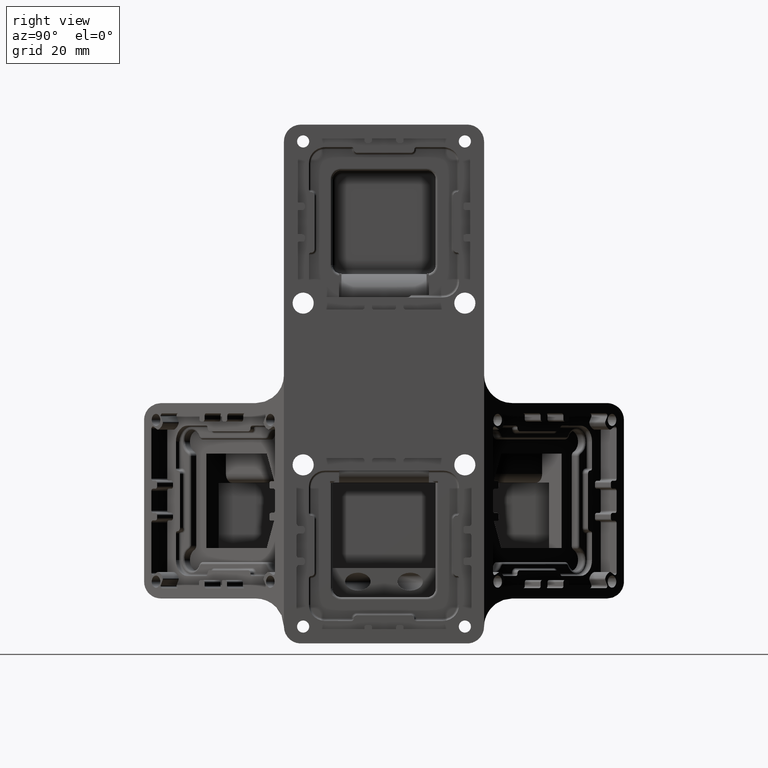
[diagram: clean part render]
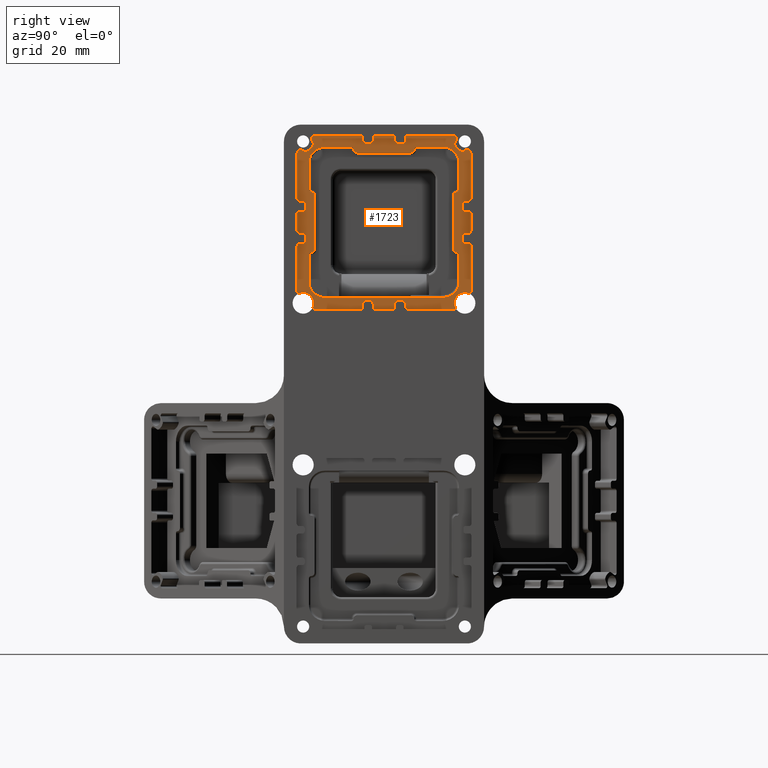
[diagram: same view with one face highlighted and labeled with its STEP entity id]
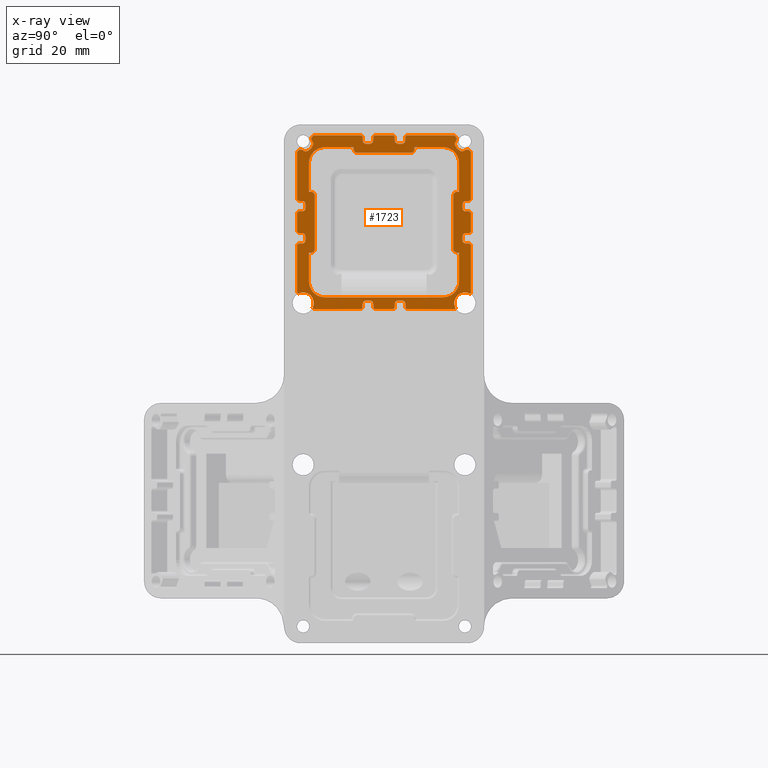
[diagram: x-ray of the same camera — body ghosted, the highlighted face saturated]
A machine part, right view. The second image highlights one B-rep face of the part: STEP entity #1723.
The next image is the same camera in x-ray: the body ghosted, the highlighted face saturated — about 0% of this face is hidden behind the body in this view.
In plain terms, the highlighted planar face has unit normal (1, 0, 0).
Its self-contained STEP definition (entity closure, byte-faithful):
#531=FACE_BOUND('',#3937,.F.);
#815=PLANE('',#25251);
#1723=ADVANCED_FACE('',(#531,#2819),#815,.T.);
#2819=FACE_OUTER_BOUND('',#3938,.F.);
#3937=EDGE_LOOP('',(#8044,#8045,#8046,#8047,#8048,#8049,#8050,#8051,#8052,
#8053,#8054,#8055,#8056,#8057,#8058,#8059,#8060,#8061,#8062,#8063,#8064,
#8065,#8066,#8067,#8068,#8069,#8070,#8071,#8072,#8073,#8074,#8075,#8076,
#8077,#8078,#8079,#8080,#8081,#8082,#8083));
#3938=EDGE_LOOP('',(#8084,#8085,#8086,#8087,#8088,#8089,#8090,#8091,#8092,
#8093,#8094,#8095,#8096,#8097,#8098,#8099,#8100,#8101,#8102,#8103,#8104,
#8105,#8106,#8107,#8108,#8109,#8110,#8111,#8112,#8113,#8114,#8115,#8116,
#8117,#8118,#8119,#8120,#8121,#8122,#8123,#8124,#8125,#8126,#8127,#8128,
#8129,#8130,#8131,#8132,#8133,#8134,#8135,#8136,#8137,#8138,#8139,#8140,
#8141,#8142,#8143,#8144,#8145,#8146,#8147,#8148,#8149,#8150,#8151,#8152,
#8153,#8154,#8155,#8156,#8157,#8158,#8159,#8160,#8161,#8162,#8163,#8164,
#8165,#8166,#8167,#8168,#8169,#8170,#8171,#8172,#8173,#8174,#8175,#8176,
#8177));
#8044=ORIENTED_EDGE('',*,*,#16594,.F.);
#8045=ORIENTED_EDGE('',*,*,#16573,.F.);
#8046=ORIENTED_EDGE('',*,*,#16574,.F.);
#8047=ORIENTED_EDGE('',*,*,#16575,.F.);
#8048=ORIENTED_EDGE('',*,*,#16569,.F.);
#8049=ORIENTED_EDGE('',*,*,#16567,.F.);
#8050=ORIENTED_EDGE('',*,*,#16568,.F.);
#8051=ORIENTED_EDGE('',*,*,#16576,.T.);
#8052=ORIENTED_EDGE('',*,*,#16577,.F.);
#8053=ORIENTED_EDGE('',*,*,#16578,.T.);
#8054=ORIENTED_EDGE('',*,*,#16579,.F.);
#8055=ORIENTED_EDGE('',*,*,#16572,.F.);
#8056=ORIENTED_EDGE('',*,*,#16570,.F.);
#8057=ORIENTED_EDGE('',*,*,#16571,.F.);
#8058=ORIENTED_EDGE('',*,*,#16580,.F.);
#8059=ORIENTED_EDGE('',*,*,#16581,.F.);
#8060=ORIENTED_EDGE('',*,*,#16557,.F.);
#8061=ORIENTED_EDGE('',*,*,#16555,.F.);
#8062=ORIENTED_EDGE('',*,*,#16556,.F.);
#8063=ORIENTED_EDGE('',*,*,#16582,.T.);
#8064=ORIENTED_EDGE('',*,*,#16583,.F.);
#8065=ORIENTED_EDGE('',*,*,#16584,.T.);
#8066=ORIENTED_EDGE('',*,*,#16585,.F.);
#8067=ORIENTED_EDGE('',*,*,#16560,.F.);
#8068=ORIENTED_EDGE('',*,*,#16558,.F.);
#8069=ORIENTED_EDGE('',*,*,#16559,.F.);
#8070=ORIENTED_EDGE('',*,*,#16586,.F.);
#8071=ORIENTED_EDGE('',*,*,#16587,.F.);
#8072=ORIENTED_EDGE('',*,*,#16563,.F.);
#8073=ORIENTED_EDGE('',*,*,#16561,.F.);
#8074=ORIENTED_EDGE('',*,*,#16562,.F.);
#8075=ORIENTED_EDGE('',*,*,#16588,.T.);
#8076=ORIENTED_EDGE('',*,*,#16589,.F.);
#8077=ORIENTED_EDGE('',*,*,#16590,.T.);
#8078=ORIENTED_EDGE('',*,*,#16591,.F.);
#8079=ORIENTED_EDGE('',*,*,#16566,.F.);
#8080=ORIENTED_EDGE('',*,*,#16564,.F.);
#8081=ORIENTED_EDGE('',*,*,#16565,.F.);
#8082=ORIENTED_EDGE('',*,*,#16592,.F.);
#8083=ORIENTED_EDGE('',*,*,#16593,.F.);
#8084=ORIENTED_EDGE('',*,*,#14799,.F.);
#8085=ORIENTED_EDGE('',*,*,#16841,.F.);
#8086=ORIENTED_EDGE('',*,*,#16842,.F.);
#8087=ORIENTED_EDGE('',*,*,#16554,.T.);
#8088=ORIENTED_EDGE('',*,*,#16553,.F.);
#8089=ORIENTED_EDGE('',*,*,#16552,.T.);
#8090=ORIENTED_EDGE('',*,*,#16551,.F.);
#8091=ORIENTED_EDGE('',*,*,#16550,.F.);
#8092=ORIENTED_EDGE('',*,*,#16549,.F.);
#8093=ORIENTED_EDGE('',*,*,#16548,.F.);
#8094=ORIENTED_EDGE('',*,*,#16547,.F.);
#8095=ORIENTED_EDGE('',*,*,#16546,.T.);
#8096=ORIENTED_EDGE('',*,*,#16545,.F.);
#8097=ORIENTED_EDGE('',*,*,#16544,.T.);
#8098=ORIENTED_EDGE('',*,*,#16543,.F.);
#8099=ORIENTED_EDGE('',*,*,#16542,.F.);
#8100=ORIENTED_EDGE('',*,*,#16541,.F.);
#8101=ORIENTED_EDGE('',*,*,#16540,.F.);
#8102=ORIENTED_EDGE('',*,*,#16539,.F.);
#8103=ORIENTED_EDGE('',*,*,#16538,.T.);
#8104=ORIENTED_EDGE('',*,*,#16537,.F.);
#8105=ORIENTED_EDGE('',*,*,#16536,.T.);
#8106=ORIENTED_EDGE('',*,*,#16839,.F.);
#8107=ORIENTED_EDGE('',*,*,#16838,.F.);
#8108=ORIENTED_EDGE('',*,*,#14802,.F.);
#8109=ORIENTED_EDGE('',*,*,#16837,.F.);
#8110=ORIENTED_EDGE('',*,*,#16535,.T.);
#8111=ORIENTED_EDGE('',*,*,#16534,.F.);
#8112=ORIENTED_EDGE('',*,*,#16533,.T.);
#8113=ORIENTED_EDGE('',*,*,#16532,.F.);
#8114=ORIENTED_EDGE('',*,*,#16531,.F.);
#8115=ORIENTED_EDGE('',*,*,#16530,.F.);
#8116=ORIENTED_EDGE('',*,*,#16529,.F.);
#8117=ORIENTED_EDGE('',*,*,#16528,.F.);
#8118=ORIENTED_EDGE('',*,*,#16527,.T.);
#8119=ORIENTED_EDGE('',*,*,#16526,.F.);
#8120=ORIENTED_EDGE('',*,*,#16525,.T.);
#8121=ORIENTED_EDGE('',*,*,#16524,.F.);
#8122=ORIENTED_EDGE('',*,*,#16523,.F.);
#8123=ORIENTED_EDGE('',*,*,#16522,.F.);
#8124=ORIENTED_EDGE('',*,*,#16521,.F.);
#8125=ORIENTED_EDGE('',*,*,#16520,.F.);
#8126=ORIENTED_EDGE('',*,*,#16519,.T.);
#8127=ORIENTED_EDGE('',*,*,#16518,.F.);
#8128=ORIENTED_EDGE('',*,*,#16516,.T.);
#8129=ORIENTED_EDGE('',*,*,#16595,.F.);
#8130=ORIENTED_EDGE('',*,*,#16596,.F.);
#8131=ORIENTED_EDGE('',*,*,#16597,.F.);
#8132=ORIENTED_EDGE('',*,*,#16598,.F.);
#8133=ORIENTED_EDGE('',*,*,#16599,.F.);
#8134=ORIENTED_EDGE('',*,*,#16514,.T.);
#8135=ORIENTED_EDGE('',*,*,#16513,.F.);
#8136=ORIENTED_EDGE('',*,*,#16512,.T.);
#8137=ORIENTED_EDGE('',*,*,#16511,.F.);
#8138=ORIENTED_EDGE('',*,*,#16510,.F.);
#8139=ORIENTED_EDGE('',*,*,#16509,.F.);
#8140=ORIENTED_EDGE('',*,*,#16508,.F.);
#8141=ORIENTED_EDGE('',*,*,#16507,.F.);
#8142=ORIENTED_EDGE('',*,*,#16506,.T.);
#8143=ORIENTED_EDGE('',*,*,#16505,.F.);
#8144=ORIENTED_EDGE('',*,*,#16504,.T.);
#8145=ORIENTED_EDGE('',*,*,#16503,.F.);
#8146=ORIENTED_EDGE('',*,*,#16502,.F.);
#8147=ORIENTED_EDGE('',*,*,#16501,.F.);
#8148=ORIENTED_EDGE('',*,*,#16500,.F.);
#8149=ORIENTED_EDGE('',*,*,#16499,.F.);
#8150=ORIENTED_EDGE('',*,*,#16498,.T.);
#8151=ORIENTED_EDGE('',*,*,#16497,.F.);
#8152=ORIENTED_EDGE('',*,*,#16495,.T.);
#8153=ORIENTED_EDGE('',*,*,#16600,.F.);
#8154=ORIENTED_EDGE('',*,*,#16601,.F.);
#8155=ORIENTED_EDGE('',*,*,#16602,.F.);
#8156=ORIENTED_EDGE('',*,*,#16603,.F.);
#8157=ORIENTED_EDGE('',*,*,#16604,.F.);
#8158=ORIENTED_EDGE('',*,*,#16493,.T.);
#8159=ORIENTED_EDGE('',*,*,#16492,.F.);
#8160=ORIENTED_EDGE('',*,*,#16491,.T.);
#8161=ORIENTED_EDGE('',*,*,#16490,.F.);
#8162=ORIENTED_EDGE('',*,*,#16489,.F.);
#8163=ORIENTED_EDGE('',*,*,#16488,.F.);
#8164=ORIENTED_EDGE('',*,*,#16487,.F.);
#8165=ORIENTED_EDGE('',*,*,#16486,.F.);
#8166=ORIENTED_EDGE('',*,*,#16485,.T.);
#8167=ORIENTED_EDGE('',*,*,#16484,.F.);
#8168=ORIENTED_EDGE('',*,*,#16483,.T.);
#8169=ORIENTED_EDGE('',*,*,#16482,.F.);
#8170=ORIENTED_EDGE('',*,*,#16481,.F.);
#8171=ORIENTED_EDGE('',*,*,#16480,.F.);
#8172=ORIENTED_EDGE('',*,*,#16479,.F.);
#8173=ORIENTED_EDGE('',*,*,#16478,.F.);
#8174=ORIENTED_EDGE('',*,*,#16477,.T.);
#8175=ORIENTED_EDGE('',*,*,#16476,.F.);
#8176=ORIENTED_EDGE('',*,*,#16475,.T.);
#8177=ORIENTED_EDGE('',*,*,#16840,.F.);
#13396=CIRCLE('',#23349,2.35);
#13397=CIRCLE('',#23350,2.35);
#14090=CIRCLE('',#24043,0.800000000000011);
#14091=CIRCLE('',#24044,0.5);
#14092=CIRCLE('',#24045,0.8);
#14093=CIRCLE('',#24046,0.800000000000001);
#14094=CIRCLE('',#24047,0.5);
#14095=CIRCLE('',#24048,0.5);
#14096=CIRCLE('',#24049,0.8);
#14097=CIRCLE('',#24050,0.800000000000001);
#14098=CIRCLE('',#24051,0.5);
#14099=CIRCLE('',#24052,0.800000000000012);
#14100=CIRCLE('',#24053,0.800000000000011);
#14101=CIRCLE('',#24054,0.5);
#14102=CIRCLE('',#24055,0.799999999999998);
#14103=CIRCLE('',#24056,0.800000000000001);
#14104=CIRCLE('',#24057,0.500000000000001);
#14105=CIRCLE('',#24058,0.499999999999999);
#14106=CIRCLE('',#24059,0.8);
#14107=CIRCLE('',#24060,0.800000000000001);
#14108=CIRCLE('',#24061,0.5);
#14109=CIRCLE('',#24062,0.800000000000007);
#14110=CIRCLE('',#24063,0.800000000000011);
#14111=CIRCLE('',#24064,0.5);
#14112=CIRCLE('',#24065,0.8);
#14113=CIRCLE('',#24066,0.800000000000001);
#14114=CIRCLE('',#24067,0.500000000000001);
#14115=CIRCLE('',#24068,0.5);
#14116=CIRCLE('',#24069,0.8);
#14117=CIRCLE('',#24070,0.800000000000001);
#14118=CIRCLE('',#24071,0.5);
#14119=CIRCLE('',#24072,0.8);
#14120=CIRCLE('',#24073,0.800000000000011);
#14121=CIRCLE('',#24074,0.5);
#14122=CIRCLE('',#24075,0.799999999999998);
#14123=CIRCLE('',#24076,0.800000000000001);
#14124=CIRCLE('',#24077,0.500000000000001);
#14125=CIRCLE('',#24078,0.499999999999999);
#14126=CIRCLE('',#24079,0.8);
#14127=CIRCLE('',#24080,0.800000000000001);
#14128=CIRCLE('',#24081,0.5);
#14129=CIRCLE('',#24082,0.800000000000007);
#14130=CIRCLE('',#24083,3.54999999999995);
#14131=CIRCLE('',#24084,0.750000000000001);
#14132=CIRCLE('',#24085,0.75);
#14133=CIRCLE('',#24086,3.54999999999995);
#14134=CIRCLE('',#24087,0.749999999999887);
#14135=CIRCLE('',#24088,0.750000000000007);
#14136=CIRCLE('',#24089,3.54999999999995);
#14137=CIRCLE('',#24090,0.750000000000001);
#14138=CIRCLE('',#24091,0.75);
#14139=CIRCLE('',#24092,3.54999999999995);
#14140=CIRCLE('',#24093,0.299999999999999);
#14141=CIRCLE('',#24094,2.35);
#14142=CIRCLE('',#24095,0.300000000000002);
#14143=CIRCLE('',#24096,0.299999999999998);
#14144=CIRCLE('',#24097,2.34999999999999);
#14145=CIRCLE('',#24098,0.3);
#14226=CIRCLE('',#24179,2.35);
#14227=CIRCLE('',#24180,2.35);
#14228=CIRCLE('',#24181,2.35);
#14229=CIRCLE('',#24182,2.35);
#14230=CIRCLE('',#24183,2.35);
#14231=CIRCLE('',#24184,2.35);
#14799=EDGE_CURVE('',#23050,#23049,#13396,.T.);
#14802=EDGE_CURVE('',#23046,#23045,#13397,.T.);
#16475=EDGE_CURVE('',#21762,#23269,#14090,.T.);
#16476=EDGE_CURVE('',#21762,#21761,#18785,.T.);
#16477=EDGE_CURVE('',#21760,#21761,#14091,.T.);
#16478=EDGE_CURVE('',#21760,#21759,#18786,.T.);
#16479=EDGE_CURVE('',#21759,#21758,#14092,.T.);
#16480=EDGE_CURVE('',#21758,#21757,#18787,.T.);
#16481=EDGE_CURVE('',#21757,#21756,#14093,.T.);
#16482=EDGE_CURVE('',#21756,#21755,#18788,.T.);
#16483=EDGE_CURVE('',#21754,#21755,#14094,.T.);
#16484=EDGE_CURVE('',#21754,#21753,#18789,.T.);
#16485=EDGE_CURVE('',#21752,#21753,#14095,.T.);
#16486=EDGE_CURVE('',#21752,#21751,#18790,.T.);
#16487=EDGE_CURVE('',#21751,#21750,#14096,.T.);
#16488=EDGE_CURVE('',#21750,#21749,#18791,.T.);
#16489=EDGE_CURVE('',#21749,#21748,#14097,.T.);
#16490=EDGE_CURVE('',#21748,#21747,#18792,.T.);
#16491=EDGE_CURVE('',#21746,#21747,#14098,.T.);
#16492=EDGE_CURVE('',#21746,#21745,#18793,.T.);
#16493=EDGE_CURVE('',#21744,#21745,#14099,.T.);
#16495=EDGE_CURVE('',#21742,#21741,#14100,.T.);
#16497=EDGE_CURVE('',#21742,#21739,#18796,.T.);
#16498=EDGE_CURVE('',#21738,#21739,#14101,.T.);
#16499=EDGE_CURVE('',#21738,#21737,#18797,.T.);
#16500=EDGE_CURVE('',#21737,#21736,#14102,.T.);
#16501=EDGE_CURVE('',#21736,#21735,#18798,.T.);
#16502=EDGE_CURVE('',#21735,#21734,#14103,.T.);
#16503=EDGE_CURVE('',#21734,#21733,#18799,.T.);
#16504=EDGE_CURVE('',#21732,#21733,#14104,.T.);
#16505=EDGE_CURVE('',#21732,#21731,#18800,.T.);
#16506=EDGE_CURVE('',#21730,#21731,#14105,.T.);
#16507=EDGE_CURVE('',#21730,#21729,#18801,.T.);
#16508=EDGE_CURVE('',#21729,#21728,#14106,.T.);
#16509=EDGE_CURVE('',#21728,#21727,#18802,.T.);
#16510=EDGE_CURVE('',#21727,#21726,#14107,.T.);
#16511=EDGE_CURVE('',#21726,#21725,#18803,.T.);
#16512=EDGE_CURVE('',#21724,#21725,#14108,.T.);
#16513=EDGE_CURVE('',#21724,#21723,#18804,.T.);
#16514=EDGE_CURVE('',#21722,#21723,#14109,.T.);
#16516=EDGE_CURVE('',#21720,#21719,#14110,.T.);
#16518=EDGE_CURVE('',#21720,#21717,#18807,.T.);
#16519=EDGE_CURVE('',#21716,#21717,#14111,.T.);
#16520=EDGE_CURVE('',#21716,#21715,#18808,.T.);
#16521=EDGE_CURVE('',#21715,#21714,#14112,.T.);
#16522=EDGE_CURVE('',#21714,#21713,#18809,.T.);
#16523=EDGE_CURVE('',#21713,#21712,#14113,.T.);
#16524=EDGE_CURVE('',#21712,#21711,#18810,.T.);
#16525=EDGE_CURVE('',#21710,#21711,#14114,.T.);
#16526=EDGE_CURVE('',#21710,#21709,#18811,.T.);
#16527=EDGE_CURVE('',#21708,#21709,#14115,.T.);
#16528=EDGE_CURVE('',#21708,#21707,#18812,.T.);
#16529=EDGE_CURVE('',#21707,#21706,#14116,.T.);
#16530=EDGE_CURVE('',#21706,#21705,#18813,.T.);
#16531=EDGE_CURVE('',#21705,#21704,#14117,.T.);
#16532=EDGE_CURVE('',#21704,#21703,#18814,.T.);
#16533=EDGE_CURVE('',#21702,#21703,#14118,.T.);
#16534=EDGE_CURVE('',#21702,#21701,#18815,.T.);
#16535=EDGE_CURVE('',#23275,#21701,#14119,.T.);
#16536=EDGE_CURVE('',#21700,#23272,#14120,.T.);
#16537=EDGE_CURVE('',#21700,#21699,#18816,.T.);
#16538=EDGE_CURVE('',#21698,#21699,#14121,.T.);
#16539=EDGE_CURVE('',#21698,#21697,#18817,.T.);
#16540=EDGE_CURVE('',#21697,#21696,#14122,.T.);
#16541=EDGE_CURVE('',#21696,#21695,#18818,.T.);
#16542=EDGE_CURVE('',#21695,#21694,#14123,.T.);
#16543=EDGE_CURVE('',#21694,#21693,#18819,.T.);
#16544=EDGE_CURVE('',#21692,#21693,#14124,.T.);
#16545=EDGE_CURVE('',#21692,#21691,#18820,.T.);
#16546=EDGE_CURVE('',#21690,#21691,#14125,.T.);
#16547=EDGE_CURVE('',#21690,#21689,#18821,.T.);
#16548=EDGE_CURVE('',#21689,#21688,#14126,.T.);
#16549=EDGE_CURVE('',#21688,#21687,#18822,.T.);
#16550=EDGE_CURVE('',#21687,#21686,#14127,.T.);
#16551=EDGE_CURVE('',#21686,#21685,#18823,.T.);
#16552=EDGE_CURVE('',#21684,#21685,#14128,.T.);
#16553=EDGE_CURVE('',#21684,#21683,#18824,.T.);
#16554=EDGE_CURVE('',#23266,#21683,#14129,.T.);
#16555=EDGE_CURVE('',#21823,#21682,#18825,.T.);
#16556=EDGE_CURVE('',#21803,#21823,#18826,.T.);
#16557=EDGE_CURVE('',#21682,#21824,#18827,.T.);
#16558=EDGE_CURVE('',#21821,#21681,#18828,.T.);
#16559=EDGE_CURVE('',#21799,#21821,#18829,.T.);
#16560=EDGE_CURVE('',#21681,#21822,#18830,.T.);
#16561=EDGE_CURVE('',#21819,#21680,#18831,.T.);
#16562=EDGE_CURVE('',#21797,#21819,#18832,.T.);
#16563=EDGE_CURVE('',#21680,#21820,#18833,.T.);
#16564=EDGE_CURVE('',#21817,#21679,#18834,.T.);
#16565=EDGE_CURVE('',#21793,#21817,#18835,.T.);
#16566=EDGE_CURVE('',#21679,#21818,#18836,.T.);
#16567=EDGE_CURVE('',#21815,#21678,#18837,.T.);
#16568=EDGE_CURVE('',#21809,#21815,#18838,.T.);
#16569=EDGE_CURVE('',#21678,#21816,#18839,.T.);
#16570=EDGE_CURVE('',#21813,#21677,#18840,.T.);
#16571=EDGE_CURVE('',#21805,#21813,#18841,.T.);
#16572=EDGE_CURVE('',#21677,#21814,#18842,.T.);
#16573=EDGE_CURVE('',#21789,#21790,#18843,.T.);
#16574=EDGE_CURVE('',#21810,#21789,#14130,.T.);
#16575=EDGE_CURVE('',#21816,#21810,#18844,.T.);
#16576=EDGE_CURVE('',#21809,#21808,#14131,.T.);
#16577=EDGE_CURVE('',#21807,#21808,#18845,.T.);
#16578=EDGE_CURVE('',#21807,#21806,#14132,.T.);
#16579=EDGE_CURVE('',#21814,#21806,#18846,.T.);
#16580=EDGE_CURVE('',#21804,#21805,#14133,.T.);
#16581=EDGE_CURVE('',#21824,#21804,#18847,.T.);
#16582=EDGE_CURVE('',#21803,#21802,#14134,.T.);
#16583=EDGE_CURVE('',#21801,#21802,#18848,.T.);
#16584=EDGE_CURVE('',#21801,#21800,#14135,.T.);
#16585=EDGE_CURVE('',#21822,#21800,#18849,.T.);
#16586=EDGE_CURVE('',#21798,#21799,#14136,.T.);
#16587=EDGE_CURVE('',#21820,#21798,#18850,.T.);
#16588=EDGE_CURVE('',#21797,#21796,#14137,.T.);
#16589=EDGE_CURVE('',#21795,#21796,#18851,.T.);
#16590=EDGE_CURVE('',#21795,#21794,#14138,.T.);
#16591=EDGE_CURVE('',#21818,#21794,#18852,.T.);
#16592=EDGE_CURVE('',#21792,#21793,#14139,.T.);
#16593=EDGE_CURVE('',#21791,#21792,#18853,.T.);
#16594=EDGE_CURVE('',#21790,#21791,#18854,.T.);
#16595=EDGE_CURVE('',#21676,#21719,#18855,.T.);
#16596=EDGE_CURVE('',#21675,#21676,#14140,.T.);
#16597=EDGE_CURVE('',#21674,#21675,#14141,.T.);
#16598=EDGE_CURVE('',#21673,#21674,#14142,.T.);
#16599=EDGE_CURVE('',#21722,#21673,#18856,.T.);
#16600=EDGE_CURVE('',#21672,#21741,#18857,.T.);
#16601=EDGE_CURVE('',#21671,#21672,#14143,.T.);
#16602=EDGE_CURVE('',#21670,#21671,#14144,.T.);
#16603=EDGE_CURVE('',#21669,#21670,#14145,.T.);
#16604=EDGE_CURVE('',#21744,#21669,#18858,.T.);
#16837=EDGE_CURVE('',#23275,#23046,#14226,.T.);
#16838=EDGE_CURVE('',#23045,#23044,#14227,.T.);
#16839=EDGE_CURVE('',#23044,#23272,#14228,.T.);
#16840=EDGE_CURVE('',#23049,#23269,#14229,.T.);
#16841=EDGE_CURVE('',#23047,#23050,#14230,.T.);
#16842=EDGE_CURVE('',#23266,#23047,#14231,.T.);
#18785=LINE('',#36685,#20567);
#18786=LINE('',#36687,#20568);
#18787=LINE('',#36689,#20569);
#18788=LINE('',#36691,#20570);
#18789=LINE('',#36693,#20571);
#18790=LINE('',#36695,#20572);
#18791=LINE('',#36697,#20573);
#18792=LINE('',#36699,#20574);
#18793=LINE('',#36701,#20575);
#18796=LINE('',#36706,#20578);
#18797=LINE('',#36708,#20579);
#18798=LINE('',#36710,#20580);
#18799=LINE('',#36712,#20581);
#18800=LINE('',#36714,#20582);
#18801=LINE('',#36716,#20583);
#18802=LINE('',#36718,#20584);
#18803=LINE('',#36720,#20585);
#18804=LINE('',#36722,#20586);
#18807=LINE('',#36727,#20589);
#18808=LINE('',#36729,#20590);
#18809=LINE('',#36731,#20591);
#18810=LINE('',#36733,#20592);
#18811=LINE('',#36735,#20593);
#18812=LINE('',#36737,#20594);
#18813=LINE('',#36739,#20595);
#18814=LINE('',#36741,#20596);
#18815=LINE('',#36743,#20597);
#18816=LINE('',#36746,#20598);
#18817=LINE('',#36748,#20599);
#18818=LINE('',#36750,#20600);
#18819=LINE('',#36752,#20601);
#18820=LINE('',#36754,#20602);
#18821=LINE('',#36756,#20603);
#18822=LINE('',#36758,#20604);
#18823=LINE('',#36760,#20605);
#18824=LINE('',#36762,#20606);
#18825=LINE('',#36764,#20607);
#18826=LINE('',#36765,#20608);
#18827=LINE('',#36766,#20609);
#18828=LINE('',#36767,#20610);
#18829=LINE('',#36768,#20611);
#18830=LINE('',#36769,#20612);
#18831=LINE('',#36770,#20613);
#18832=LINE('',#36771,#20614);
#18833=LINE('',#36772,#20615);
#18834=LINE('',#36773,#20616);
#18835=LINE('',#36774,#20617);
#18836=LINE('',#36775,#20618);
#18837=LINE('',#36776,#20619);
#18838=LINE('',#36777,#20620);
#18839=LINE('',#36778,#20621);
#18840=LINE('',#36779,#20622);
#18841=LINE('',#36780,#20623);
#18842=LINE('',#36781,#20624);
#18843=LINE('',#36782,#20625);
#18844=LINE('',#36784,#20626);
#18845=LINE('',#36786,#20627);
#18846=LINE('',#36788,#20628);
#18847=LINE('',#36790,#20629);
#18848=LINE('',#36792,#20630);
#18849=LINE('',#36794,#20631);
#18850=LINE('',#36796,#20632);
#18851=LINE('',#36798,#20633);
#18852=LINE('',#36800,#20634);
#18853=LINE('',#36802,#20635);
#18854=LINE('',#36803,#20636);
#18855=LINE('',#36804,#20637);
#18856=LINE('',#36808,#20638);
#18857=LINE('',#36809,#20639);
#18858=LINE('',#36813,#20640);
#20567=VECTOR('',#28195,10.1189351705351);
#20568=VECTOR('',#28198,0.599993532528117);
#20569=VECTOR('',#28201,0.74999987358121);
#20570=VECTOR('',#28204,0.599993285113584);
#20571=VECTOR('',#28207,3.79999999999991);
#20572=VECTOR('',#28210,0.599993004453893);
#20573=VECTOR('',#28213,0.749999873558863);
#20574=VECTOR('',#28216,0.599992757039303);
#20575=VECTOR('',#28219,10.1189426495775);
#20578=VECTOR('',#28226,10.1189351705328);
#20579=VECTOR('',#28229,0.599993532528117);
#20580=VECTOR('',#28232,0.749999873581203);
#20581=VECTOR('',#28235,0.599993285113612);
#20582=VECTOR('',#28238,3.79999999999991);
#20583=VECTOR('',#28241,0.599993004453864);
#20584=VECTOR('',#28244,0.749999873558806);
#20585=VECTOR('',#28247,0.599992757039331);
#20586=VECTOR('',#28250,10.1189426495775);
#20589=VECTOR('',#28257,10.118935170535);
#20590=VECTOR('',#28260,0.599993532528089);
#20591=VECTOR('',#28263,0.749999873581231);
#20592=VECTOR('',#28266,0.599993285113612);
#20593=VECTOR('',#28269,3.79999999999991);
#20594=VECTOR('',#28272,0.599993004453893);
#20595=VECTOR('',#28275,0.749999873558806);
#20596=VECTOR('',#28278,0.599992757039331);
#20597=VECTOR('',#28281,10.1189426495775);
#20598=VECTOR('',#28286,10.1189351705328);
#20599=VECTOR('',#28289,0.599993532528117);
#20600=VECTOR('',#28292,0.749999873581203);
#20601=VECTOR('',#28295,0.599993285113584);
#20602=VECTOR('',#28298,3.79999999999988);
#20603=VECTOR('',#28301,0.599993004453864);
#20604=VECTOR('',#28304,0.749999873558806);
#20605=VECTOR('',#28307,0.599992757039303);
#20606=VECTOR('',#28310,10.1189426495775);
#20607=VECTOR('',#28313,0.500084898505264);
#20608=VECTOR('',#28314,0.0197750253638844);
#20609=VECTOR('',#28315,0.500084898505222);
#20610=VECTOR('',#28316,0.500000134232499);
#20611=VECTOR('',#28317,5.91876588882698);
#20612=VECTOR('',#28318,0.500000134232507);
#20613=VECTOR('',#28319,0.500084898505293);
#20614=VECTOR('',#28320,0.0197750253639128);
#20615=VECTOR('',#28321,0.500084898505279);
#20616=VECTOR('',#28322,0.500000134232499);
#20617=VECTOR('',#28323,5.91876588882774);
#20618=VECTOR('',#28324,0.500000134232535);
#20619=VECTOR('',#28325,0.500084898505293);
#20620=VECTOR('',#28326,0.0197750253639128);
#20621=VECTOR('',#28327,0.500084898505279);
#20622=VECTOR('',#28328,0.500000134232499);
#20623=VECTOR('',#28329,5.91876588882774);
#20624=VECTOR('',#28330,0.500000134232535);
#20625=VECTOR('',#28331,6.41876602749122);
#20626=VECTOR('',#28334,5.92037518717521);
#20627=VECTOR('',#28337,12.0000070948883);
#20628=VECTOR('',#28340,0.0198636821935173);
#20629=VECTOR('',#28343,5.92037518717527);
#20630=VECTOR('',#28346,12.0000070948882);
#20631=VECTOR('',#28349,0.0198636821936025);
#20632=VECTOR('',#28352,5.92037518717521);
#20633=VECTOR('',#28355,12.0000070948883);
#20634=VECTOR('',#28358,0.0198636821935173);
#20635=VECTOR('',#28361,6.42046008568083);
#20636=VECTOR('',#28362,13.5000072115491);
#20637=VECTOR('',#28363,0.667546038423967);
#20638=VECTOR('',#28370,0.667545987816439);
#20639=VECTOR('',#28371,0.667546038423932);
#20640=VECTOR('',#28378,0.667545987816197);
#21669=VERTEX_POINT('',#32453);
#21670=VERTEX_POINT('',#32454);
#21671=VERTEX_POINT('',#32455);
#21672=VERTEX_POINT('',#32456);
#21673=VERTEX_POINT('',#32457);
#21674=VERTEX_POINT('',#32458);
#21675=VERTEX_POINT('',#32459);
#21676=VERTEX_POINT('',#32460);
#21677=VERTEX_POINT('',#32461);
#21678=VERTEX_POINT('',#32462);
#21679=VERTEX_POINT('',#32463);
#21680=VERTEX_POINT('',#32464);
#21681=VERTEX_POINT('',#32465);
#21682=VERTEX_POINT('',#32466);
#21683=VERTEX_POINT('',#32467);
#21684=VERTEX_POINT('',#32468);
#21685=VERTEX_POINT('',#32469);
#21686=VERTEX_POINT('',#32470);
#21687=VERTEX_POINT('',#32471);
#21688=VERTEX_POINT('',#32472);
#21689=VERTEX_POINT('',#32473);
#21690=VERTEX_POINT('',#32474);
#21691=VERTEX_POINT('',#32475);
#21692=VERTEX_POINT('',#32476);
#21693=VERTEX_POINT('',#32477);
#21694=VERTEX_POINT('',#32478);
#21695=VERTEX_POINT('',#32479);
#21696=VERTEX_POINT('',#32480);
#21697=VERTEX_POINT('',#32481);
#21698=VERTEX_POINT('',#32482);
#21699=VERTEX_POINT('',#32483);
#21700=VERTEX_POINT('',#32484);
#21701=VERTEX_POINT('',#32485);
#21702=VERTEX_POINT('',#32486);
#21703=VERTEX_POINT('',#32487);
#21704=VERTEX_POINT('',#32488);
#21705=VERTEX_POINT('',#32489);
#21706=VERTEX_POINT('',#32490);
#21707=VERTEX_POINT('',#32491);
#21708=VERTEX_POINT('',#32492);
#21709=VERTEX_POINT('',#32493);
#21710=VERTEX_POINT('',#32494);
#21711=VERTEX_POINT('',#32495);
#21712=VERTEX_POINT('',#32496);
#21713=VERTEX_POINT('',#32497);
#21714=VERTEX_POINT('',#32498);
#21715=VERTEX_POINT('',#32499);
#21716=VERTEX_POINT('',#32500);
#21717=VERTEX_POINT('',#32501);
#21719=VERTEX_POINT('',#32503);
#21720=VERTEX_POINT('',#32504);
#21722=VERTEX_POINT('',#32506);
#21723=VERTEX_POINT('',#32507);
#21724=VERTEX_POINT('',#32508);
#21725=VERTEX_POINT('',#32509);
#21726=VERTEX_POINT('',#32510);
#21727=VERTEX_POINT('',#32511);
#21728=VERTEX_POINT('',#32512);
#21729=VERTEX_POINT('',#32513);
#21730=VERTEX_POINT('',#32514);
#21731=VERTEX_POINT('',#32515);
#21732=VERTEX_POINT('',#32516);
#21733=VERTEX_POINT('',#32517);
#21734=VERTEX_POINT('',#32518);
#21735=VERTEX_POINT('',#32519);
#21736=VERTEX_POINT('',#32520);
#21737=VERTEX_POINT('',#32521);
#21738=VERTEX_POINT('',#32522);
#21739=VERTEX_POINT('',#32523);
#21741=VERTEX_POINT('',#32525);
#21742=VERTEX_POINT('',#32526);
#21744=VERTEX_POINT('',#32528);
#21745=VERTEX_POINT('',#32529);
#21746=VERTEX_POINT('',#32530);
#21747=VERTEX_POINT('',#32531);
#21748=VERTEX_POINT('',#32532);
#21749=VERTEX_POINT('',#32533);
#21750=VERTEX_POINT('',#32534);
#21751=VERTEX_POINT('',#32535);
#21752=VERTEX_POINT('',#32536);
#21753=VERTEX_POINT('',#32537);
#21754=VERTEX_POINT('',#32538);
#21755=VERTEX_POINT('',#32539);
#21756=VERTEX_POINT('',#32540);
#21757=VERTEX_POINT('',#32541);
#21758=VERTEX_POINT('',#32542);
#21759=VERTEX_POINT('',#32543);
#21760=VERTEX_POINT('',#32544);
#21761=VERTEX_POINT('',#32545);
#21762=VERTEX_POINT('',#32546);
#21789=VERTEX_POINT('',#32573);
#21790=VERTEX_POINT('',#32574);
#21791=VERTEX_POINT('',#32575);
#21792=VERTEX_POINT('',#32576);
#21793=VERTEX_POINT('',#32577);
#21794=VERTEX_POINT('',#32578);
#21795=VERTEX_POINT('',#32579);
#21796=VERTEX_POINT('',#32580);
#21797=VERTEX_POINT('',#32581);
#21798=VERTEX_POINT('',#32582);
#21799=VERTEX_POINT('',#32583);
#21800=VERTEX_POINT('',#32584);
#21801=VERTEX_POINT('',#32585);
#21802=VERTEX_POINT('',#32586);
#21803=VERTEX_POINT('',#32587);
#21804=VERTEX_POINT('',#32588);
#21805=VERTEX_POINT('',#32589);
#21806=VERTEX_POINT('',#32590);
#21807=VERTEX_POINT('',#32591);
#21808=VERTEX_POINT('',#32592);
#21809=VERTEX_POINT('',#32593);
#21810=VERTEX_POINT('',#32594);
#21813=VERTEX_POINT('',#32597);
#21814=VERTEX_POINT('',#32598);
#21815=VERTEX_POINT('',#32599);
#21816=VERTEX_POINT('',#32600);
#21817=VERTEX_POINT('',#32601);
#21818=VERTEX_POINT('',#32602);
#21819=VERTEX_POINT('',#32603);
#21820=VERTEX_POINT('',#32604);
#21821=VERTEX_POINT('',#32605);
#21822=VERTEX_POINT('',#32606);
#21823=VERTEX_POINT('',#32607);
#21824=VERTEX_POINT('',#32608);
#23044=VERTEX_POINT('',#33828);
#23045=VERTEX_POINT('',#33829);
#23046=VERTEX_POINT('',#33830);
#23047=VERTEX_POINT('',#33831);
#23049=VERTEX_POINT('',#33833);
#23050=VERTEX_POINT('',#33834);
#23266=VERTEX_POINT('',#34050);
#23269=VERTEX_POINT('',#34053);
#23272=VERTEX_POINT('',#34056);
#23275=VERTEX_POINT('',#34059);
#23349=AXIS2_PLACEMENT_3D('',#35008,#25823,#25824);
#23350=AXIS2_PLACEMENT_3D('',#35011,#25827,#25828);
#24043=AXIS2_PLACEMENT_3D('',#36684,#28193,#28194);
#24044=AXIS2_PLACEMENT_3D('',#36686,#28196,#28197);
#24045=AXIS2_PLACEMENT_3D('',#36688,#28199,#28200);
#24046=AXIS2_PLACEMENT_3D('',#36690,#28202,#28203);
#24047=AXIS2_PLACEMENT_3D('',#36692,#28205,#28206);
#24048=AXIS2_PLACEMENT_3D('',#36694,#28208,#28209);
#24049=AXIS2_PLACEMENT_3D('',#36696,#28211,#28212);
#24050=AXIS2_PLACEMENT_3D('',#36698,#28214,#28215);
#24051=AXIS2_PLACEMENT_3D('',#36700,#28217,#28218);
#24052=AXIS2_PLACEMENT_3D('',#36702,#28220,#28221);
#24053=AXIS2_PLACEMENT_3D('',#36704,#28223,#28224);
#24054=AXIS2_PLACEMENT_3D('',#36707,#28227,#28228);
#24055=AXIS2_PLACEMENT_3D('',#36709,#28230,#28231);
#24056=AXIS2_PLACEMENT_3D('',#36711,#28233,#28234);
#24057=AXIS2_PLACEMENT_3D('',#36713,#28236,#28237);
#24058=AXIS2_PLACEMENT_3D('',#36715,#28239,#28240);
#24059=AXIS2_PLACEMENT_3D('',#36717,#28242,#28243);
#24060=AXIS2_PLACEMENT_3D('',#36719,#28245,#28246);
#24061=AXIS2_PLACEMENT_3D('',#36721,#28248,#28249);
#24062=AXIS2_PLACEMENT_3D('',#36723,#28251,#28252);
#24063=AXIS2_PLACEMENT_3D('',#36725,#28254,#28255);
#24064=AXIS2_PLACEMENT_3D('',#36728,#28258,#28259);
#24065=AXIS2_PLACEMENT_3D('',#36730,#28261,#28262);
#24066=AXIS2_PLACEMENT_3D('',#36732,#28264,#28265);
#24067=AXIS2_PLACEMENT_3D('',#36734,#28267,#28268);
#24068=AXIS2_PLACEMENT_3D('',#36736,#28270,#28271);
#24069=AXIS2_PLACEMENT_3D('',#36738,#28273,#28274);
#24070=AXIS2_PLACEMENT_3D('',#36740,#28276,#28277);
#24071=AXIS2_PLACEMENT_3D('',#36742,#28279,#28280);
#24072=AXIS2_PLACEMENT_3D('',#36744,#28282,#28283);
#24073=AXIS2_PLACEMENT_3D('',#36745,#28284,#28285);
#24074=AXIS2_PLACEMENT_3D('',#36747,#28287,#28288);
#24075=AXIS2_PLACEMENT_3D('',#36749,#28290,#28291);
#24076=AXIS2_PLACEMENT_3D('',#36751,#28293,#28294);
#24077=AXIS2_PLACEMENT_3D('',#36753,#28296,#28297);
#24078=AXIS2_PLACEMENT_3D('',#36755,#28299,#28300);
#24079=AXIS2_PLACEMENT_3D('',#36757,#28302,#28303);
#24080=AXIS2_PLACEMENT_3D('',#36759,#28305,#28306);
#24081=AXIS2_PLACEMENT_3D('',#36761,#28308,#28309);
#24082=AXIS2_PLACEMENT_3D('',#36763,#28311,#28312);
#24083=AXIS2_PLACEMENT_3D('',#36783,#28332,#28333);
#24084=AXIS2_PLACEMENT_3D('',#36785,#28335,#28336);
#24085=AXIS2_PLACEMENT_3D('',#36787,#28338,#28339);
#24086=AXIS2_PLACEMENT_3D('',#36789,#28341,#28342);
#24087=AXIS2_PLACEMENT_3D('',#36791,#28344,#28345);
#24088=AXIS2_PLACEMENT_3D('',#36793,#28347,#28348);
#24089=AXIS2_PLACEMENT_3D('',#36795,#28350,#28351);
#24090=AXIS2_PLACEMENT_3D('',#36797,#28353,#28354);
#24091=AXIS2_PLACEMENT_3D('',#36799,#28356,#28357);
#24092=AXIS2_PLACEMENT_3D('',#36801,#28359,#28360);
#24093=AXIS2_PLACEMENT_3D('',#36805,#28364,#28365);
#24094=AXIS2_PLACEMENT_3D('',#36806,#28366,#28367);
#24095=AXIS2_PLACEMENT_3D('',#36807,#28368,#28369);
#24096=AXIS2_PLACEMENT_3D('',#36810,#28372,#28373);
#24097=AXIS2_PLACEMENT_3D('',#36811,#28374,#28375);
#24098=AXIS2_PLACEMENT_3D('',#36812,#28376,#28377);
#24179=AXIS2_PLACEMENT_3D('',#37046,#28691,#28692);
#24180=AXIS2_PLACEMENT_3D('',#37047,#28693,#28694);
#24181=AXIS2_PLACEMENT_3D('',#37048,#28695,#28696);
#24182=AXIS2_PLACEMENT_3D('',#37049,#28697,#28698);
#24183=AXIS2_PLACEMENT_3D('',#37050,#28699,#28700);
#24184=AXIS2_PLACEMENT_3D('',#37051,#28701,#28702);
#25251=AXIS2_PLACEMENT_3D('',#39330,#31295,#31296);
#25823=DIRECTION('',(-1.,0.,0.));
#25824=DIRECTION('',(0.,-0.962540330947494,0.271138546318092));
#25827=DIRECTION('',(-1.,0.,0.));
#25828=DIRECTION('',(0.,0.271136245286062,0.962540979123578));
#28193=DIRECTION('',(-1.,0.,0.));
#28194=DIRECTION('',(0.,1.,0.));
#28195=DIRECTION('',(0.,-6.67583769243104E-07,0.999999999999777));
#28196=DIRECTION('',(-1.,0.,0.));
#28197=DIRECTION('',(0.,0.,1.));
#28198=DIRECTION('',(0.,-1.,0.));
#28199=DIRECTION('',(-1.,0.,0.));
#28200=DIRECTION('',(0.,0.,-1.));
#28201=DIRECTION('',(0.,0.,1.));
#28202=DIRECTION('',(-1.,0.,0.));
#28203=DIRECTION('',(0.,-1.,0.));
#28204=DIRECTION('',(0.,1.,0.));
#28205=DIRECTION('',(-1.,0.,0.));
#28206=DIRECTION('',(0.,1.,0.));
#28207=DIRECTION('',(0.,-7.38541186101926E-08,0.999999999999997));
#28208=DIRECTION('',(-1.,0.,0.));
#28209=DIRECTION('',(0.,0.,1.));
#28210=DIRECTION('',(0.,-1.,0.));
#28211=DIRECTION('',(-1.,0.,0.));
#28212=DIRECTION('',(0.,0.,-1.));
#28213=DIRECTION('',(0.,0.,1.));
#28214=DIRECTION('',(-1.,0.,0.));
#28215=DIRECTION('',(0.,-1.,0.));
#28216=DIRECTION('',(0.,1.,0.));
#28217=DIRECTION('',(-1.,0.,0.));
#28218=DIRECTION('',(0.,1.,0.));
#28219=DIRECTION('',(0.,-1.51321195666618E-08,1.));
#28220=DIRECTION('',(-1.,0.,0.));
#28221=DIRECTION('',(0.,-0.469471562788463,0.882947592857559));
#28223=DIRECTION('',(-1.,0.,0.));
#28224=DIRECTION('',(0.,0.,1.));
#28226=DIRECTION('',(0.,-0.999999999999777,-6.67583768541063E-07));
#28227=DIRECTION('',(-1.,0.,0.));
#28228=DIRECTION('',(0.,-1.,0.));
#28229=DIRECTION('',(0.,0.,-1.));
#28230=DIRECTION('',(-1.,0.,0.));
#28231=DIRECTION('',(0.,1.,0.));
#28232=DIRECTION('',(0.,-1.,0.));
#28233=DIRECTION('',(-1.,0.,0.));
#28234=DIRECTION('',(0.,0.,-1.));
#28235=DIRECTION('',(0.,0.,1.));
#28236=DIRECTION('',(-1.,0.,0.));
#28237=DIRECTION('',(0.,-7.38541530154178E-08,0.999999999999997));
#28238=DIRECTION('',(0.,-0.999999999999997,-7.38541167403433E-08));
#28239=DIRECTION('',(-1.,0.,0.));
#28240=DIRECTION('',(0.,-1.,0.));
#28241=DIRECTION('',(0.,0.,-1.));
#28242=DIRECTION('',(-1.,0.,0.));
#28243=DIRECTION('',(0.,1.,0.));
#28244=DIRECTION('',(0.,-1.,0.));
#28245=DIRECTION('',(-1.,0.,0.));
#28246=DIRECTION('',(0.,0.,-1.));
#28247=DIRECTION('',(0.,0.,1.));
#28248=DIRECTION('',(-1.,0.,0.));
#28249=DIRECTION('',(0.,-1.51321160046791E-08,1.));
#28250=DIRECTION('',(0.,-1.,-1.51321209710432E-08));
#28251=DIRECTION('',(-1.,0.,0.));
#28252=DIRECTION('',(0.,-0.882947592857563,-0.469471562788456));
#28254=DIRECTION('',(-1.,0.,0.));
#28255=DIRECTION('',(0.,-1.,0.));
#28257=DIRECTION('',(0.,6.67583766434341E-07,-0.999999999999777));
#28258=DIRECTION('',(-1.,0.,0.));
#28259=DIRECTION('',(0.,0.,-1.));
#28260=DIRECTION('',(0.,1.,0.));
#28261=DIRECTION('',(-1.,0.,0.));
#28262=DIRECTION('',(0.,0.,1.));
#28263=DIRECTION('',(0.,0.,-1.));
#28264=DIRECTION('',(-1.,0.,0.));
#28265=DIRECTION('',(0.,1.,0.));
#28266=DIRECTION('',(0.,-1.,0.));
#28267=DIRECTION('',(-1.,0.,0.));
#28268=DIRECTION('',(0.,-0.999999999999997,-7.38541103828536E-08));
#28269=DIRECTION('',(0.,7.38541111307953E-08,-0.999999999999997));
#28270=DIRECTION('',(-1.,0.,0.));
#28271=DIRECTION('',(0.,0.,-1.));
#28272=DIRECTION('',(0.,1.,0.));
#28273=DIRECTION('',(-1.,0.,0.));
#28274=DIRECTION('',(0.,0.,1.));
#28275=DIRECTION('',(0.,0.,-1.));
#28276=DIRECTION('',(-1.,0.,0.));
#28277=DIRECTION('',(0.,1.,0.));
#28278=DIRECTION('',(0.,-1.,0.));
#28279=DIRECTION('',(-1.,0.,0.));
#28280=DIRECTION('',(0.,-1.,-1.51321231101065E-08));
#28281=DIRECTION('',(0.,1.51321195666618E-08,-1.));
#28282=DIRECTION('',(-1.,0.,0.));
#28283=DIRECTION('',(0.,-0.709454190858023,-0.704751552729037));
#28284=DIRECTION('',(-1.,0.,0.));
#28285=DIRECTION('',(0.,0.,-1.));
#28286=DIRECTION('',(0.,0.999999999999777,6.67583768541063E-07));
#28287=DIRECTION('',(-1.,0.,0.));
#28288=DIRECTION('',(0.,1.,0.));
#28289=DIRECTION('',(0.,0.,1.));
#28290=DIRECTION('',(-1.,0.,0.));
#28291=DIRECTION('',(0.,-1.,0.));
#28292=DIRECTION('',(0.,1.,0.));
#28293=DIRECTION('',(-1.,0.,0.));
#28294=DIRECTION('',(0.,0.,1.));
#28295=DIRECTION('',(0.,0.,-1.));
#28296=DIRECTION('',(-1.,0.,0.));
#28297=DIRECTION('',(0.,7.38541530154178E-08,-0.999999999999997));
#28298=DIRECTION('',(0.,0.999999999999997,7.38541176752685E-08));
#28299=DIRECTION('',(-1.,0.,0.));
#28300=DIRECTION('',(0.,1.,0.));
#28301=DIRECTION('',(0.,0.,1.));
#28302=DIRECTION('',(-1.,0.,0.));
#28303=DIRECTION('',(0.,-1.,0.));
#28304=DIRECTION('',(0.,1.,0.));
#28305=DIRECTION('',(-1.,0.,0.));
#28306=DIRECTION('',(0.,0.,1.));
#28307=DIRECTION('',(0.,0.,-1.));
#28308=DIRECTION('',(-1.,0.,0.));
#28309=DIRECTION('',(0.,1.51321160046791E-08,-1.));
#28310=DIRECTION('',(0.,1.,1.51321213221385E-08));
#28311=DIRECTION('',(-1.,0.,0.));
#28312=DIRECTION('',(0.,0.704748950211656,-0.709456776115056));
#28313=DIRECTION('',(0.,3.73346709683339E-09,1.));
#28314=DIRECTION('',(0.,3.73254537137344E-09,1.));
#28315=DIRECTION('',(0.,0.999999985586301,-0.000169786328465124));
#28316=DIRECTION('',(0.,0.999999999999876,4.97665646979715E-07));
#28317=DIRECTION('',(0.,0.999999999999876,4.97665612508173E-07));
#28318=DIRECTION('',(0.,2.2920061823649E-07,-0.999999999999974));
#28319=DIRECTION('',(0.,-1.,3.73341026306452E-09));
#28320=DIRECTION('',(0.,-1.,3.73398262411023E-09));
#28321=DIRECTION('',(0.,0.000169786328465105,0.999999985586301));
#28322=DIRECTION('',(0.,-4.97665646979715E-07,0.999999999999876));
#28323=DIRECTION('',(0.,-4.97665612508108E-07,0.999999999999876));
#28324=DIRECTION('',(0.,0.999999999999974,2.29200611131052E-07));
#28325=DIRECTION('',(0.,1.,-3.7334599926121E-09));
#28326=DIRECTION('',(0.,1.,-3.73254537136808E-09));
#28327=DIRECTION('',(0.,-0.000169786328465105,-0.999999985586301));
#28328=DIRECTION('',(0.,4.97665590136311E-07,-0.999999999999876));
#28329=DIRECTION('',(0.,4.97665617310074E-07,-0.999999999999876));
#28330=DIRECTION('',(0.,-0.999999999999974,-2.29200675079881E-07));
#28331=DIRECTION('',(0.,-0.999999999999876,-4.97665613742806E-07));
#28332=DIRECTION('',(-1.,0.,0.));
#28333=DIRECTION('',(0.,0.999999985586301,-0.000169786327545118));
#28334=DIRECTION('',(0.,-0.000169786328469747,-0.999999985586301));
#28335=DIRECTION('',(-1.,0.,0.));
#28336=DIRECTION('',(0.,0.,-1.));
#28337=DIRECTION('',(0.,-3.94549818615173E-08,-0.999999999999999));
#28338=DIRECTION('',(-1.,0.,0.));
#28339=DIRECTION('',(0.,-0.999999999999999,3.94543064885511E-08));
#28340=DIRECTION('',(0.,-0.999999999999974,-2.29200200771665E-07));
#28341=DIRECTION('',(-1.,0.,0.));
#28342=DIRECTION('',(0.,0.000169786327545118,0.999999985586301));
#28343=DIRECTION('',(0.,0.999999985586301,-0.000169786328470946));
#28344=DIRECTION('',(-1.,0.,0.));
#28345=DIRECTION('',(0.,1.,0.));
#28346=DIRECTION('',(0.,0.999999999999999,-3.94549848221104E-08));
#28347=DIRECTION('',(-1.,0.,0.));
#28348=DIRECTION('',(0.,-3.94542591190353E-08,-0.999999999999999));
#28349=DIRECTION('',(0.,2.29201631608586E-07,-0.999999999999974));
#28350=DIRECTION('',(-1.,0.,0.));
#28351=DIRECTION('',(0.,-0.999999985586301,0.000169786327545118));
#28352=DIRECTION('',(0.,0.000169786328469747,0.999999985586301));
#28353=DIRECTION('',(-1.,0.,0.));
#28354=DIRECTION('',(0.,0.,1.));
#28355=DIRECTION('',(0.,3.94549818615173E-08,0.999999999999999));
#28356=DIRECTION('',(-1.,0.,0.));
#28357=DIRECTION('',(0.,0.999999999999999,-3.94543064885511E-08));
#28358=DIRECTION('',(0.,0.999999999999974,2.2920163160957E-07));
#28359=DIRECTION('',(-1.,0.,0.));
#28360=DIRECTION('',(0.,-0.000169786327545118,-0.999999985586301));
#28361=DIRECTION('',(0.,-0.999999985586301,0.000169786328469377));
#28362=DIRECTION('',(0.,-0.999999999999948,3.23823133688714E-07));
#28363=DIRECTION('',(0.,-0.882947592859314,0.469471562785163));
#28364=DIRECTION('',(-1.,0.,0.));
#28365=DIRECTION('',(0.,0.271134935753802,-0.962541348002143));
#28366=DIRECTION('',(-1.,0.,0.));
#28367=DIRECTION('',(0.,0.96254136109543,-0.271134889272031));
#28368=DIRECTION('',(-1.,0.,0.));
#28369=DIRECTION('',(0.,0.882947592861293,0.46947156278144));
#28370=DIRECTION('',(0.,0.46947156278146,-0.882947592861283));
#28371=DIRECTION('',(0.,0.469471562785176,0.882947592859307));
#28372=DIRECTION('',(-1.,0.,0.));
#28373=DIRECTION('',(0.,-0.962541348002149,-0.27113493575378));
#28374=DIRECTION('',(-1.,0.,0.));
#28375=DIRECTION('',(0.,-0.271134889271914,-0.962541361095463));
#28376=DIRECTION('',(-1.,0.,0.));
#28377=DIRECTION('',(0.,0.469471562781599,-0.882947592861209));
#28378=DIRECTION('',(0.,-0.882947592861221,-0.469471562781577));
#28691=DIRECTION('',(-1.,0.,0.));
#28692=DIRECTION('',(0.,-0.475557290911696,0.879684752090616));
#28693=DIRECTION('',(-1.,0.,0.));
#28694=DIRECTION('',(0.,0.96254123829836,0.271135325206914));
#28695=DIRECTION('',(-1.,0.,0.));
#28696=DIRECTION('',(0.,1.,0.));
#28697=DIRECTION('',(-1.,0.,0.));
#28698=DIRECTION('',(0.,-0.271134657822878,0.962541426291498));
#28699=DIRECTION('',(-1.,0.,0.));
#28700=DIRECTION('',(0.,-1.,0.));
#28701=DIRECTION('',(-1.,0.,0.));
#28702=DIRECTION('',(0.,-0.879685615527767,-0.475555693724231));
#31295=DIRECTION('',(1.,0.,0.));
#31296=DIRECTION('',(0.,1.,0.));
#32453=CARTESIAN_POINT('',(69.8649997447654,-182.414987475444,51.7619139535678));
#32454=CARTESIAN_POINT('',(69.8649997447654,-182.63716941106,51.7380358230975));
#32455=CARTESIAN_POINT('',(69.8649997447654,-184.261974589076,53.3628409226504));
#32456=CARTESIAN_POINT('',(69.8649997447654,-184.238096462533,53.5850228722121));
#32457=CARTESIAN_POINT('',(69.8649997447654,-215.761902242603,53.5850152330694));
#32458=CARTESIAN_POINT('',(69.8649997447654,-215.738024112133,53.3628332974533));
#32459=CARTESIAN_POINT('',(69.8649997447654,-217.362829211686,51.7380281194376));
#32460=CARTESIAN_POINT('',(69.8649997447654,-217.585011161247,51.7619062459804));
#32461=CARTESIAN_POINT('',(69.8649997447654,-183.28013151323,42.750014505546));
#32462=CARTESIAN_POINT('',(69.8649997447654,-183.280135884845,29.2500072895648));
#32463=CARTESIAN_POINT('',(69.8649997447654,-216.719859625136,29.2500072933415));
#32464=CARTESIAN_POINT('',(69.8649997447654,-216.719855253522,42.7500145093227));
#32465=CARTESIAN_POINT('',(69.8649997447654,-206.749999175286,52.7198749553969));
#32466=CARTESIAN_POINT('',(69.8649997447654,-193.249991959304,52.7198705837823));
#32467=CARTESIAN_POINT('',(69.8649997447654,-184.631052969587,16.650013813113));
#32468=CARTESIAN_POINT('',(69.8649997447654,-194.749995617655,16.650013659992));
#32469=CARTESIAN_POINT('',(69.8649997447654,-195.249995625221,17.1500136599924));
#32470=CARTESIAN_POINT('',(69.8649997447654,-195.249995625221,17.7500064170321));
#32471=CARTESIAN_POINT('',(69.8649997447654,-196.049995625219,18.5500064170325));
#32472=CARTESIAN_POINT('',(69.8649997447654,-196.799995498778,18.5500064170342));
#32473=CARTESIAN_POINT('',(69.8649997447654,-197.59999549878,17.7500064170344));
#32474=CARTESIAN_POINT('',(69.8649997447654,-197.59999549878,17.1500134125806));
#32475=CARTESIAN_POINT('',(69.8649997447654,-198.099995461853,16.6500134125807));
#32476=CARTESIAN_POINT('',(69.8649997447654,-201.899995461853,16.650013131935));
#32477=CARTESIAN_POINT('',(69.8649997447654,-202.39999549878,17.1500131319352));
#32478=CARTESIAN_POINT('',(69.8649997447654,-202.39999549878,17.7500064170489));
#32479=CARTESIAN_POINT('',(69.8649997447654,-203.199995498778,18.550006417049));
#32480=CARTESIAN_POINT('',(69.8649997447654,-203.949995372359,18.5500064170507));
#32481=CARTESIAN_POINT('',(69.8649997447654,-204.749995372361,17.7500064170515));
#32482=CARTESIAN_POINT('',(69.8649997447654,-204.749995372361,17.1500128845236));
#32483=CARTESIAN_POINT('',(69.8649997447654,-205.249995038571,16.6500128845239));
#32484=CARTESIAN_POINT('',(69.8649997447654,-215.368930275865,16.650006129287));
#32485=CARTESIAN_POINT('',(69.8649997447654,-219.349988895401,20.6310646805517));
#32486=CARTESIAN_POINT('',(69.8649997447654,-219.349989048522,30.7500073286201));
#32487=CARTESIAN_POINT('',(69.8649997447654,-218.849989048521,31.2500073361862));
#32488=CARTESIAN_POINT('',(69.8649997447654,-218.249996291482,31.2500073361857));
#32489=CARTESIAN_POINT('',(69.8649997447654,-217.449996291481,32.0500073361848));
#32490=CARTESIAN_POINT('',(69.8649997447654,-217.44999629148,32.8000072097436));
#32491=CARTESIAN_POINT('',(69.8649997447654,-218.249996291479,33.6000072097445));
#32492=CARTESIAN_POINT('',(69.8649997447654,-218.849989295933,33.6000072097447));
#32493=CARTESIAN_POINT('',(69.8649997447654,-219.349989295933,34.1000071728176));
#32494=CARTESIAN_POINT('',(69.8649997447654,-219.349989576579,37.9000071728175));
#32495=CARTESIAN_POINT('',(69.8649997447654,-218.849989576579,38.4000072097446));
#32496=CARTESIAN_POINT('',(69.8649997447654,-218.249996291465,38.4000072097444));
#32497=CARTESIAN_POINT('',(69.8649997447654,-217.449996291465,39.2000072097435));
#32498=CARTESIAN_POINT('',(69.8649997447654,-217.449996291463,39.9500070833247));
#32499=CARTESIAN_POINT('',(69.8649997447654,-218.249996291462,40.7500070833256));
#32500=CARTESIAN_POINT('',(69.8649997447654,-218.84998982399,40.7500070833262));
#32501=CARTESIAN_POINT('',(69.8649997447654,-219.34998982399,41.2500067495343));
#32503=CARTESIAN_POINT('',(69.8649997447654,-218.174419328996,52.0753001278701));
#32504=CARTESIAN_POINT('',(69.8649997447654,-219.349996579227,51.3689419868297));
#32506=CARTESIAN_POINT('',(69.8649997447654,-216.075296100731,54.1744233561354));
#32507=CARTESIAN_POINT('',(69.8649997447654,-215.368938027962,55.3500006063656));
#32508=CARTESIAN_POINT('',(69.8649997447654,-205.249995379894,55.3500007594866));
#32509=CARTESIAN_POINT('',(69.8649997447654,-204.749995372328,54.8500007594864));
#32510=CARTESIAN_POINT('',(69.8649997447654,-204.749995372328,54.2500080024469));
#32511=CARTESIAN_POINT('',(69.8649997447654,-203.94999537233,53.4500080024461));
#32512=CARTESIAN_POINT('',(69.8649997447654,-203.199995498771,53.4500080024444));
#32513=CARTESIAN_POINT('',(69.8649997447654,-202.399995498769,54.2500080024443));
#32514=CARTESIAN_POINT('',(69.8649997447654,-202.399995498769,54.850001006898));
#32515=CARTESIAN_POINT('',(69.8649997447654,-201.899995535696,55.3500010068979));
#32516=CARTESIAN_POINT('',(69.8649997447654,-198.099995535696,55.3500012875435));
#32517=CARTESIAN_POINT('',(69.8649997447654,-197.599995498769,54.8500012875435));
#32518=CARTESIAN_POINT('',(69.8649997447654,-197.599995498769,54.2500080024298));
#32519=CARTESIAN_POINT('',(69.8649997447654,-196.799995498771,53.4500080024296));
#32520=CARTESIAN_POINT('',(69.8649997447654,-196.04999562519,53.4500080024278));
#32521=CARTESIAN_POINT('',(69.8649997447654,-195.249995625188,54.2500080024275));
#32522=CARTESIAN_POINT('',(69.8649997447654,-195.249995625188,54.8500015349552));
#32523=CARTESIAN_POINT('',(69.8649997447654,-194.749995958978,55.3500015349547));
#32525=CARTESIAN_POINT('',(69.8649997447654,-183.924702580644,54.174431039961));
#32526=CARTESIAN_POINT('',(69.8649997447654,-184.631060721684,55.3500082901916));
#32528=CARTESIAN_POINT('',(69.8649997447654,-181.825579352378,52.075307811696));
#32529=CARTESIAN_POINT('',(69.8649997447654,-180.650002102148,51.3689497389269));
#32530=CARTESIAN_POINT('',(69.8649997447654,-180.650001949027,41.2500070870754));
#32531=CARTESIAN_POINT('',(69.8649997447654,-181.150001949028,40.7500070832924));
#32532=CARTESIAN_POINT('',(69.8649997447654,-181.749994706067,40.7500070832929));
#32533=CARTESIAN_POINT('',(69.8649997447654,-182.549994706068,39.9500070832948));
#32534=CARTESIAN_POINT('',(69.8649997447654,-182.549994706069,39.2000072097359));
#32535=CARTESIAN_POINT('',(69.8649997447654,-181.74999470607,38.4000072097341));
#32536=CARTESIAN_POINT('',(69.8649997447654,-181.150001701616,38.4000072097339));
#32537=CARTESIAN_POINT('',(69.8649997447654,-180.650001701616,37.9000072281974));
#32538=CARTESIAN_POINT('',(69.8649997447654,-180.65000142097,34.1000072281975));
#32539=CARTESIAN_POINT('',(69.8649997447654,-181.15000142097,33.600007209734));
#32540=CARTESIAN_POINT('',(69.8649997447654,-181.749994706084,33.6000072097342));
#32541=CARTESIAN_POINT('',(69.8649997447654,-182.549994706084,32.8000072097361));
#32542=CARTESIAN_POINT('',(69.8649997447654,-182.549994706086,32.0500073361548));
#32543=CARTESIAN_POINT('',(69.8649997447654,-181.749994706087,31.250007336153));
#32544=CARTESIAN_POINT('',(69.8649997447654,-181.150001173559,31.2500073361524));
#32545=CARTESIAN_POINT('',(69.8649997447654,-180.650001173559,30.7500075030484));
#32546=CARTESIAN_POINT('',(69.8649997447654,-180.649994418322,20.6310724326489));
#32573=CARTESIAN_POINT('',(69.8649997447654,-186.831225940021,19.2801500378897));
#32574=CARTESIAN_POINT('',(69.8649997447654,-193.249991967512,19.2801468434906));
#32575=CARTESIAN_POINT('',(69.8649997447654,-206.749999179061,19.2801512151052));
#32576=CARTESIAN_POINT('',(69.8649997447654,-213.1704591722,19.2812413214505));
#32577=CARTESIAN_POINT('',(69.8649997447654,-216.719856430737,22.831241270282));
#32578=CARTESIAN_POINT('',(69.8649997447654,-216.19999580871,29.2500074124946));
#32579=CARTESIAN_POINT('',(69.8649997447654,-215.449995805909,30.0000073829039));
#32580=CARTESIAN_POINT('',(69.8649997447654,-215.449995332449,42.0000144777921));
#32581=CARTESIAN_POINT('',(69.8649997447654,-216.199995330585,42.7500145073826));
#32582=CARTESIAN_POINT('',(69.8649997447654,-216.718765147176,49.1704745024606));
#32583=CARTESIAN_POINT('',(69.8649997447654,-213.168765198345,52.7198717609978));
#32584=CARTESIAN_POINT('',(69.8649997447654,-206.749999056132,52.2000111389708));
#32585=CARTESIAN_POINT('',(69.8649997447654,-205.999999085723,51.4500111361701));
#32586=CARTESIAN_POINT('',(69.8649997447654,-193.999991990835,51.45001066271));
#32587=CARTESIAN_POINT('',(69.8649997447654,-193.249991961244,52.2000106608454));
#32588=CARTESIAN_POINT('',(69.8649997447654,-186.829531966166,52.7187804774369));
#32589=CARTESIAN_POINT('',(69.8649997447654,-183.280134707629,49.1687805286055));
#32590=CARTESIAN_POINT('',(69.8649997447654,-183.799995329656,42.7500143863929));
#32591=CARTESIAN_POINT('',(69.8649997447654,-184.549995332457,42.0000144159836));
#32592=CARTESIAN_POINT('',(69.8649997447654,-184.549995805917,30.0000073210954));
#32593=CARTESIAN_POINT('',(69.8649997447654,-183.799995807781,29.2500072915049));
#32594=CARTESIAN_POINT('',(69.8649997447654,-183.28122599119,22.8295472964269));
#32597=CARTESIAN_POINT('',(69.8649997447654,-183.280131762063,43.2500146684285));
#32598=CARTESIAN_POINT('',(69.8649997447654,-183.780131647462,42.7500144482458));
#32599=CARTESIAN_POINT('',(69.8649997447667,-183.780220783325,29.2500072914753));
#32600=CARTESIAN_POINT('',(69.8649997447654,-183.280220792423,28.7499223982676));
#32601=CARTESIAN_POINT('',(69.8649997447654,-216.719859376303,28.7500071304589));
#32602=CARTESIAN_POINT('',(69.8649997447654,-216.219859490904,29.2500073506416));
#32603=CARTESIAN_POINT('',(69.8649997447667,-216.219770355041,42.7500145074122));
#32604=CARTESIAN_POINT('',(69.8649997447654,-216.719770345943,43.2500994006199));
#32605=CARTESIAN_POINT('',(69.8649997447654,-207.250000045909,52.7198732337805));
#32606=CARTESIAN_POINT('',(69.8649997447654,-206.749999060685,52.2198748211644));
#32607=CARTESIAN_POINT('',(69.8649997447654,-193.249991961171,52.219785685277));
#32608=CARTESIAN_POINT('',(69.8649997447654,-192.749907068007,52.7197856762034));
#33828=CARTESIAN_POINT('',(69.8649997447654,-215.649992614445,18.0000042724729));
#33829=CARTESIAN_POINT('',(69.8649997447654,-215.738020704444,18.6371722867092));
#33830=CARTESIAN_POINT('',(69.8649997447654,-217.362822438023,20.2619755734133));
#33831=CARTESIAN_POINT('',(69.8649997447654,-184.349992614445,18.0000042724729));
#33833=CARTESIAN_POINT('',(69.8649997447654,-182.637159060329,20.2619766242579));
#33834=CARTESIAN_POINT('',(69.8649997447654,-184.261962392171,18.6371798563204));
#34050=CARTESIAN_POINT('',(69.8649997447654,-184.067253810935,16.8824483922209));
#34053=CARTESIAN_POINT('',(69.8649997447654,-180.882436700859,20.0672654509428));
#34056=CARTESIAN_POINT('',(69.8649997447654,-215.932733451371,16.8824446308032));
#34059=CARTESIAN_POINT('',(69.8649997447654,-219.117552248087,20.0672634398859));
#35008=CARTESIAN_POINT('',(69.8649997447654,-181.999992614445,18.0000042724729));
#35011=CARTESIAN_POINT('',(69.8649997447654,-217.999992614445,18.0000042724729));
#36684=CARTESIAN_POINT('',(69.8649997447654,-181.449994418322,20.6310723658948));
#36685=CARTESIAN_POINT('',(69.8649997447654,-180.649994418322,20.6310724994116));
#36686=CARTESIAN_POINT('',(69.8649997447654,-181.150001173559,30.7500073361524));
#36687=CARTESIAN_POINT('',(69.8649997447654,-181.150001173559,31.2500073361524));
#36688=CARTESIAN_POINT('',(69.8649997447654,-181.749994706086,32.050007336153));
#36689=CARTESIAN_POINT('',(69.8649997447654,-182.549994706086,32.0500073361548));
#36690=CARTESIAN_POINT('',(69.8649997447654,-181.749994706084,32.8000072097342));
#36691=CARTESIAN_POINT('',(69.8649997447654,-181.749994706084,33.6000072097342));
#36692=CARTESIAN_POINT('',(69.8649997447654,-181.15000142097,34.100007209734));
#36693=CARTESIAN_POINT('',(69.8649997447654,-180.65000142097,34.1000072466611));
#36694=CARTESIAN_POINT('',(69.8649997447654,-181.150001701616,37.9000072097339));
#36695=CARTESIAN_POINT('',(69.8649997447654,-181.150001701616,38.4000072097339));
#36696=CARTESIAN_POINT('',(69.8649997447654,-181.749994706069,39.2000072097341));
#36697=CARTESIAN_POINT('',(69.8649997447654,-182.549994706069,39.2000072097359));
#36698=CARTESIAN_POINT('',(69.8649997447654,-181.749994706068,39.9500070832929));
#36699=CARTESIAN_POINT('',(69.8649997447654,-181.749994706067,40.7500070832929));
#36700=CARTESIAN_POINT('',(69.8649997447654,-181.150001949027,41.2500070832924));
#36701=CARTESIAN_POINT('',(69.8649997447654,-180.650001949027,41.2500070908584));
#36702=CARTESIAN_POINT('',(69.8649997447654,-181.450002102148,51.3689497374095));
#36704=CARTESIAN_POINT('',(69.8649997447654,-184.63106065493,54.5500082901916));
#36706=CARTESIAN_POINT('',(69.8649997447654,-184.631060788447,55.3500082901915));
#36707=CARTESIAN_POINT('',(69.8649997447654,-194.749995625188,54.8500015349548));
#36708=CARTESIAN_POINT('',(69.8649997447654,-195.249995625188,54.8500015349552));
#36709=CARTESIAN_POINT('',(69.8649997447654,-196.049995625188,54.2500080024278));
#36710=CARTESIAN_POINT('',(69.8649997447654,-196.04999562519,53.4500080024278));
#36711=CARTESIAN_POINT('',(69.8649997447654,-196.799995498769,54.2500080024296));
#36712=CARTESIAN_POINT('',(69.8649997447654,-197.599995498769,54.2500080024298));
#36713=CARTESIAN_POINT('',(69.8649997447654,-198.099995498769,54.8500012875435));
#36714=CARTESIAN_POINT('',(69.8649997447654,-198.099995535696,55.3500012875435));
#36715=CARTESIAN_POINT('',(69.8649997447654,-201.899995498769,54.8500010068979));
#36716=CARTESIAN_POINT('',(69.8649997447654,-202.399995498769,54.850001006898));
#36717=CARTESIAN_POINT('',(69.8649997447654,-203.199995498769,54.2500080024444));
#36718=CARTESIAN_POINT('',(69.8649997447654,-203.199995498771,53.4500080024444));
#36719=CARTESIAN_POINT('',(69.8649997447654,-203.949995372328,54.2500080024461));
#36720=CARTESIAN_POINT('',(69.8649997447654,-204.749995372328,54.2500080024469));
#36721=CARTESIAN_POINT('',(69.8649997447654,-205.249995372328,54.8500007594866));
#36722=CARTESIAN_POINT('',(69.8649997447654,-205.249995379894,55.3500007594866));
#36723=CARTESIAN_POINT('',(69.8649997447654,-215.368938026445,54.5500006063656));
#36725=CARTESIAN_POINT('',(69.8649997447654,-218.549996579227,51.3689420535838));
#36727=CARTESIAN_POINT('',(69.8649997447654,-219.349996579227,51.3689419200671));
#36728=CARTESIAN_POINT('',(69.8649997447654,-218.84998982399,41.2500070833262));
#36729=CARTESIAN_POINT('',(69.8649997447654,-218.84998982399,40.7500070833262));
#36730=CARTESIAN_POINT('',(69.8649997447654,-218.249996291463,39.9500070833256));
#36731=CARTESIAN_POINT('',(69.8649997447654,-217.449996291463,39.9500070833238));
#36732=CARTESIAN_POINT('',(69.8649997447654,-218.249996291465,39.2000072097444));
#36733=CARTESIAN_POINT('',(69.8649997447654,-218.249996291465,38.4000072097444));
#36734=CARTESIAN_POINT('',(69.8649997447654,-218.849989576579,37.9000072097446));
#36735=CARTESIAN_POINT('',(69.8649997447654,-219.349989576579,37.9000071728175));
#36736=CARTESIAN_POINT('',(69.8649997447654,-218.849989295933,34.1000072097447));
#36737=CARTESIAN_POINT('',(69.8649997447654,-218.849989295933,33.6000072097447));
#36738=CARTESIAN_POINT('',(69.8649997447654,-218.24999629148,32.8000072097445));
#36739=CARTESIAN_POINT('',(69.8649997447654,-217.44999629148,32.8000072097426));
#36740=CARTESIAN_POINT('',(69.8649997447654,-218.249996291481,32.0500073361857));
#36741=CARTESIAN_POINT('',(69.8649997447654,-218.249996291482,31.2500073361857));
#36742=CARTESIAN_POINT('',(69.8649997447654,-218.849989048522,30.7500073361862));
#36743=CARTESIAN_POINT('',(69.8649997447654,-219.349989048522,30.7500073286202));
#36744=CARTESIAN_POINT('',(69.8649997447654,-218.549988895401,20.6310646820691));
#36745=CARTESIAN_POINT('',(69.8649997447654,-215.368930342619,17.450006129287));
#36746=CARTESIAN_POINT('',(69.8649997447654,-215.368930209102,16.6500061292871));
#36747=CARTESIAN_POINT('',(69.8649997447654,-205.249995372361,17.1500128845238));
#36748=CARTESIAN_POINT('',(69.8649997447654,-204.749995372361,17.1500128845234));
#36749=CARTESIAN_POINT('',(69.8649997447654,-203.949995372361,17.7500064170508));
#36750=CARTESIAN_POINT('',(69.8649997447654,-203.949995372359,18.5500064170507));
#36751=CARTESIAN_POINT('',(69.8649997447654,-203.19999549878,17.750006417049));
#36752=CARTESIAN_POINT('',(69.8649997447654,-202.39999549878,17.7500064170488));
#36753=CARTESIAN_POINT('',(69.8649997447654,-201.89999549878,17.150013131935));
#36754=CARTESIAN_POINT('',(69.8649997447654,-201.899995461853,16.6500131319351));
#36755=CARTESIAN_POINT('',(69.8649997447654,-198.09999549878,17.1500134125807));
#36756=CARTESIAN_POINT('',(69.8649997447654,-197.59999549878,17.1500134125806));
#36757=CARTESIAN_POINT('',(69.8649997447654,-196.79999549878,17.7500064170342));
#36758=CARTESIAN_POINT('',(69.8649997447654,-196.799995498778,18.5500064170342));
#36759=CARTESIAN_POINT('',(69.8649997447654,-196.049995625221,17.7500064170324));
#36760=CARTESIAN_POINT('',(69.8649997447654,-195.249995625221,17.7500064170317));
#36761=CARTESIAN_POINT('',(69.8649997447654,-194.749995625221,17.150013659992));
#36762=CARTESIAN_POINT('',(69.8649997447654,-194.749995617655,16.650013659992));
#36763=CARTESIAN_POINT('',(69.8649997447654,-184.631052971104,17.450013813113));
#36764=CARTESIAN_POINT('',(69.8649997447654,-193.249991961171,52.219785685277));
#36765=CARTESIAN_POINT('',(69.8649997447654,-193.249991961245,52.2000106599131));
#36766=CARTESIAN_POINT('',(69.8649997447654,-193.249991959304,52.7198705837823));
#36767=CARTESIAN_POINT('',(69.8649997447654,-207.249999309519,52.719874706564));
#36768=CARTESIAN_POINT('',(69.8649997447654,-213.168765198345,52.7198717609978));
#36769=CARTESIAN_POINT('',(69.8649997447654,-206.749999175285,52.7198749553969));
#36770=CARTESIAN_POINT('',(69.8649997447654,-216.219770355016,42.7500145074557));
#36771=CARTESIAN_POINT('',(69.8649997447654,-216.199995329652,42.7500145073818));
#36772=CARTESIAN_POINT('',(69.8649997447654,-216.719855253522,42.7500145093227));
#36773=CARTESIAN_POINT('',(69.8649997447654,-216.719859376303,28.750007159109));
#36774=CARTESIAN_POINT('',(69.8649997447654,-216.719856430737,22.831241270282));
#36775=CARTESIAN_POINT('',(69.8649997447654,-216.719859625136,29.2500072933415));
#36776=CARTESIAN_POINT('',(69.8649997447654,-183.78022078335,29.2500072914318));
#36777=CARTESIAN_POINT('',(69.8649997447654,-183.799995808714,29.2500072915056));
#36778=CARTESIAN_POINT('',(69.8649997447654,-183.280135884845,29.2500072895648));
#36779=CARTESIAN_POINT('',(69.8649997447654,-183.280131762063,43.2500146397784));
#36780=CARTESIAN_POINT('',(69.8649997447654,-183.280134707629,49.1687805286054));
#36781=CARTESIAN_POINT('',(69.8649997447654,-183.28013151323,42.750014505546));
#36782=CARTESIAN_POINT('',(69.8649997447654,-186.831225940021,19.2801500378897));
#36783=CARTESIAN_POINT('',(69.8649997447654,-186.831225940021,22.8301500378897));
#36784=CARTESIAN_POINT('',(69.8649997447654,-183.280220792423,28.7499223982676));
#36785=CARTESIAN_POINT('',(69.8649997447654,-183.799995805917,30.0000072915034));
#36786=CARTESIAN_POINT('',(69.8649997447654,-184.549995332457,42.0000144159836));
#36787=CARTESIAN_POINT('',(69.8649997447654,-183.799995332457,42.0000143863929));
#36788=CARTESIAN_POINT('',(69.8649997447654,-183.780131647462,42.7500143909456));
#36789=CARTESIAN_POINT('',(69.8649997447654,-186.830134707629,49.1687805286055));
#36790=CARTESIAN_POINT('',(69.8649997447654,-192.749907068007,52.7197856762034));
#36791=CARTESIAN_POINT('',(69.8649997447654,-193.999991961243,52.2000106627099));
#36792=CARTESIAN_POINT('',(69.8649997447654,-205.999999085723,51.45001113617));
#36793=CARTESIAN_POINT('',(69.8649997447654,-205.999999056132,52.2000111361702));
#36794=CARTESIAN_POINT('',(69.8649997447654,-206.749999060685,52.2198748211644));
#36795=CARTESIAN_POINT('',(69.8649997447654,-213.168765198345,49.1698717609978));
#36796=CARTESIAN_POINT('',(69.8649997447654,-216.719770345943,43.2500994006199));
#36797=CARTESIAN_POINT('',(69.8649997447654,-216.199995332449,42.0000145073841));
#36798=CARTESIAN_POINT('',(69.8649997447654,-215.449995805909,30.0000073829039));
#36799=CARTESIAN_POINT('',(69.8649997447654,-216.19999580591,30.0000074124946));
#36800=CARTESIAN_POINT('',(69.8649997447654,-216.219859490904,29.2500074079418));
#36801=CARTESIAN_POINT('',(69.8649997447654,-213.169856430737,22.831241270282));
#36802=CARTESIAN_POINT('',(69.8649997447654,-206.749999179062,19.2801512151052));
#36803=CARTESIAN_POINT('',(69.8649997447654,-193.249991967513,19.2801468434906));
#36804=CARTESIAN_POINT('',(69.8649997447654,-217.585011161247,51.7619062459804));
#36805=CARTESIAN_POINT('',(69.8649997447654,-217.444169692412,52.0267905238382));
#36806=CARTESIAN_POINT('',(69.8649997447654,-217.999996310707,54.0000002872426));
#36807=CARTESIAN_POINT('',(69.8649997447654,-216.026786520461,53.4441737642349));
#36808=CARTESIAN_POINT('',(69.8649997447654,-216.075296100732,54.1744233561361));
#36809=CARTESIAN_POINT('',(69.8649997447654,-184.238096462533,53.5850228722121));
#36810=CARTESIAN_POINT('',(69.8649997447654,-183.973212184676,53.4441814033765));
#36811=CARTESIAN_POINT('',(69.8649997447654,-182.000002421271,54.0000080216718));
#36812=CARTESIAN_POINT('',(69.8649997447654,-182.555828944279,52.0267982314261));
#36813=CARTESIAN_POINT('',(69.8649997447654,-181.825579352378,52.0753078116965));
#37046=CARTESIAN_POINT('',(69.8649997447654,-217.999992614445,18.0000042724729));
#37047=CARTESIAN_POINT('',(69.8649997447654,-217.999992614445,18.0000042724729));
#37048=CARTESIAN_POINT('',(69.8649997447654,-217.999992614445,18.0000042724729));
#37049=CARTESIAN_POINT('',(69.8649997447654,-181.999992614445,18.0000042724729));
#37050=CARTESIAN_POINT('',(69.8649997447654,-181.999992614445,18.0000042724729));
#37051=CARTESIAN_POINT('',(69.8649997447654,-181.999992614445,18.0000042724729));
#39330=CARTESIAN_POINT('',(69.8649997447654,-219.738077942627,55.7380896535916));